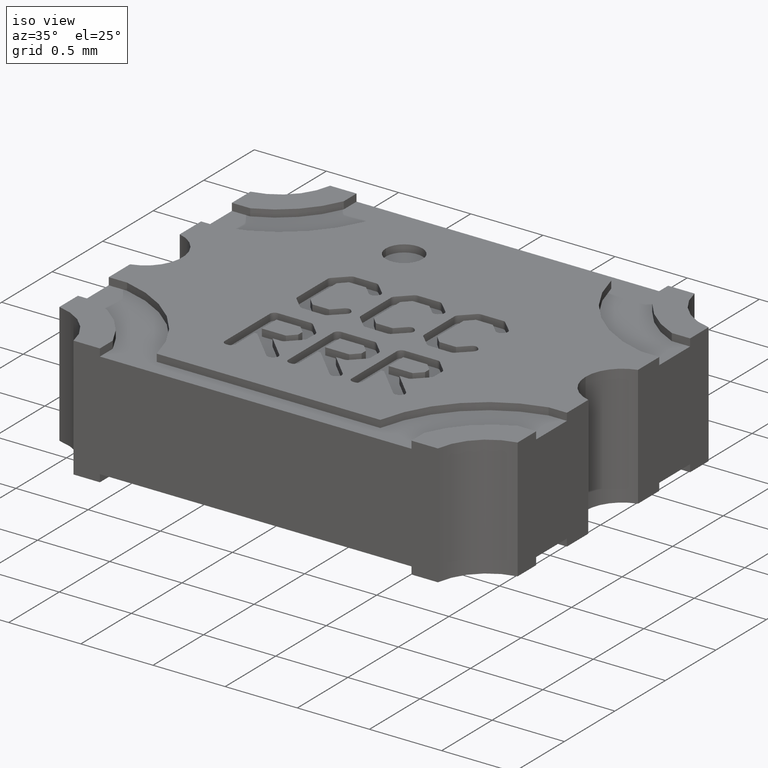
[diagram: clean part render]
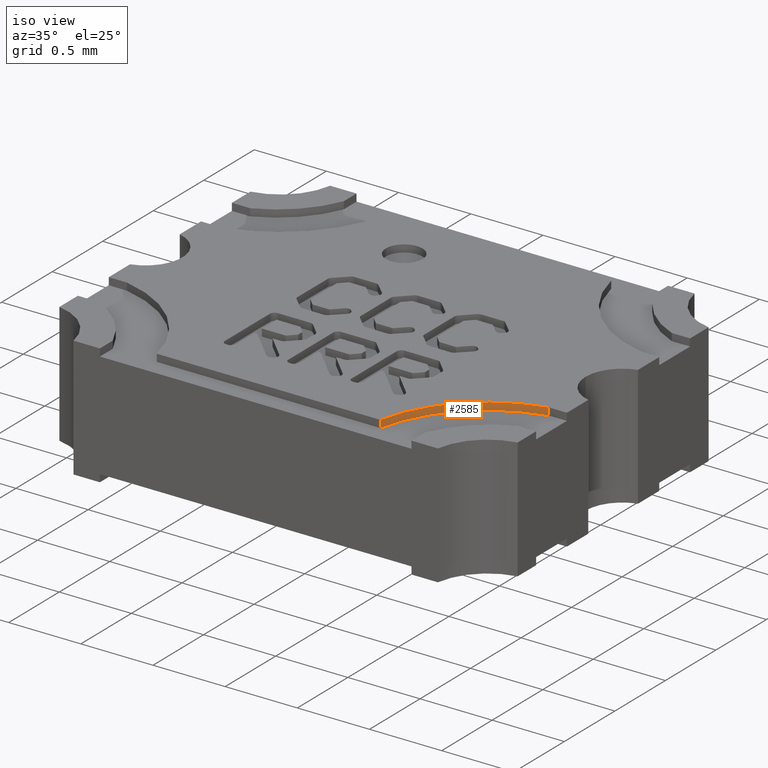
[diagram: same view with one face highlighted and labeled with its STEP entity id]
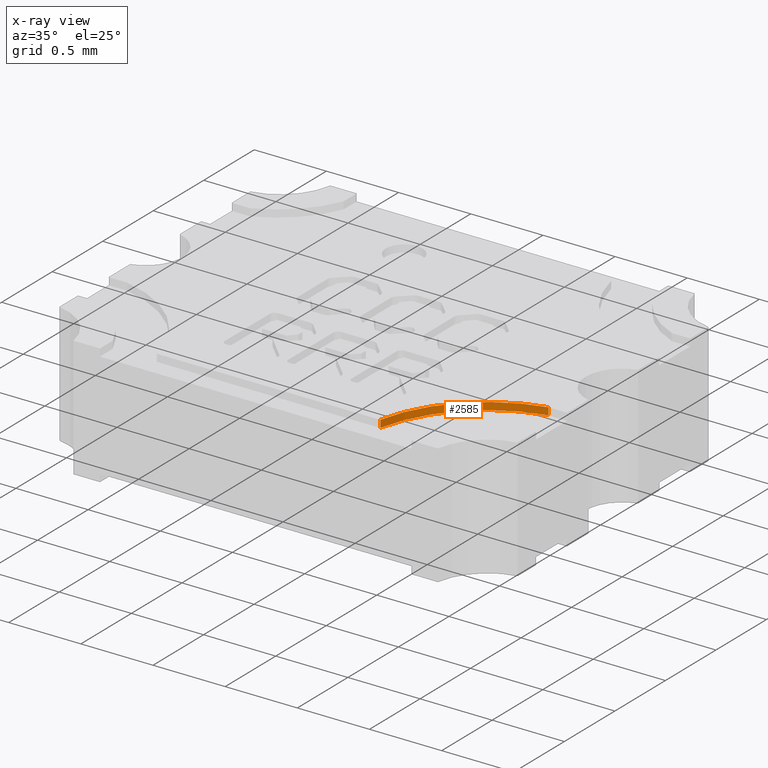
[diagram: x-ray of the same camera — body ghosted, the highlighted face saturated]
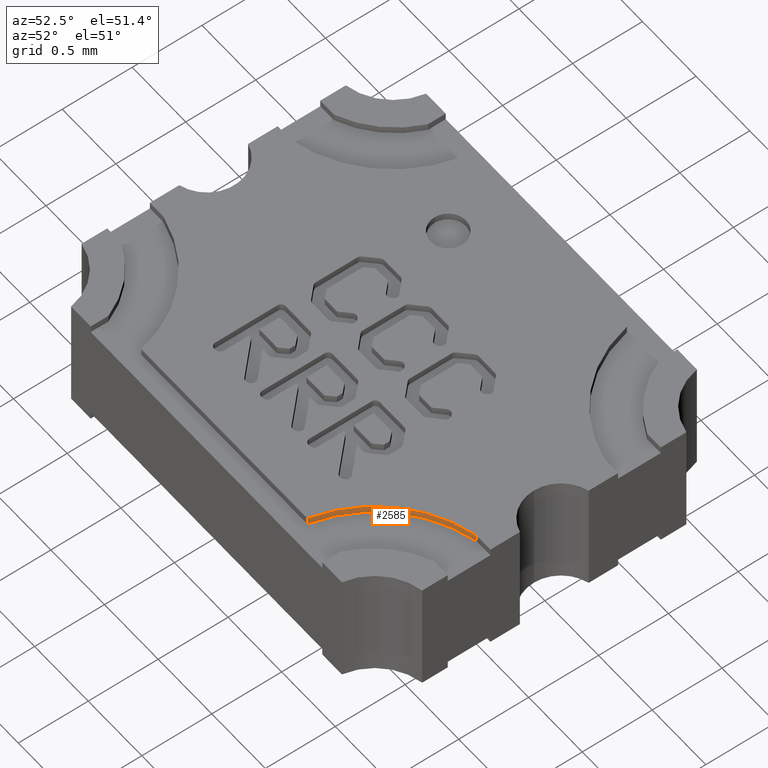
[diagram: same view with one face highlighted and labeled with its STEP entity id]
A machine part, iso view. The second image highlights one B-rep face of the part: STEP entity #2585.
The next image is the same camera in x-ray: the body ghosted, the highlighted face saturated — about 0% of this face is hidden behind the body in this view.
A second angle (auxiliary view) of the same face is appended — the face is thin or edge-on in the first view.
In plain terms, the highlighted cylindrical surface (partial cylindrical patch) has radius 0.8903 mm, axis along (-0, -0, 1).
Its self-contained STEP definition (entity closure, byte-faithful):
#1014 = CIRCLE ( 'NONE', #2217, 0.03504927346586871051 ) ;
#1221 = CARTESIAN_POINT ( 'NONE',  ( 0.06478448744574369367, -0.05227605478253748855, 0.03300000000000000155 ) ) ;
#1361 = DIRECTION ( 'NONE',  ( 1.000000000000000000, 0.000000000000000000, 0.000000000000000000 ) ) ;
#1708 = FACE_OUTER_BOUND ( 'NONE', #2147, .T. ) ;
#2015 = VERTEX_POINT ( 'NONE', #5715 ) ;
#2107 = EDGE_CURVE ( 'NONE', #2015, #4805, #1014, .T. ) ;
#2147 = EDGE_LOOP ( 'NONE', ( #7771, #9205, #4107, #5205 ) ) ;
#2217 = AXIS2_PLACEMENT_3D ( 'NONE', #2812, #8508, #5013 ) ;
#2249 = AXIS2_PLACEMENT_3D ( 'NONE', #1221, #8371, #1361 ) ;
#2585 = ADVANCED_FACE ( 'NONE', ( #1708 ), #7190, .F. ) ;
#2601 = VERTEX_POINT ( 'NONE', #4422 ) ;
#2812 = CARTESIAN_POINT ( 'NONE',  ( 0.06478448744574369367, -0.05227605478253748855, 0.03100000000000000325 ) ) ;
#3119 = DIRECTION ( 'NONE',  ( 1.000000000000000000, 0.000000000000000000, 0.000000000000000000 ) ) ;
#4005 = CARTESIAN_POINT ( 'NONE',  ( 0.03050000000132902997, -0.04499419436372816689, 0.03100000000000000325 ) ) ;
#4107 = ORIENTED_EDGE ( 'NONE', *, *, #2107, .F. ) ;
#4422 = CARTESIAN_POINT ( 'NONE',  ( 0.03050000000132902997, -0.04499419436372816689, 0.03300000000000000155 ) ) ;
#4805 = VERTEX_POINT ( 'NONE', #9142 ) ;
#4991 = VECTOR ( 'NONE', #9007, 39.37007874015748143 ) ;
#5013 = DIRECTION ( 'NONE',  ( 1.000000000000000000, 0.000000000000000000, 0.000000000000000000 ) ) ;
#5115 = CARTESIAN_POINT ( 'NONE',  ( 0.05750135668381906734, -0.01799183717749427286, 0.03300000000000000155 ) ) ;
#5205 = ORIENTED_EDGE ( 'NONE', *, *, #7857, .T. ) ;
#5424 = CARTESIAN_POINT ( 'NONE',  ( 0.05750135668381906734, -0.01799183717749427286, 0.03100000000000000325 ) ) ;
#5715 = CARTESIAN_POINT ( 'NONE',  ( 0.05750135668381906734, -0.01799183717749427286, 0.03100000000000000325 ) ) ;
#5740 = VECTOR ( 'NONE', #8316, 39.37007874015748143 ) ;
#6516 = EDGE_CURVE ( 'NONE', #8499, #2601, #7030, .T. ) ;
#6823 = LINE ( 'NONE', #5424, #5740 ) ;
#7030 = CIRCLE ( 'NONE', #2249, 0.03504927346586871051 ) ;
#7087 = AXIS2_PLACEMENT_3D ( 'NONE', #8064, #7317, #3119 ) ;
#7190 = CYLINDRICAL_SURFACE ( 'NONE', #7087, 0.03504927346586871051 ) ;
#7317 = DIRECTION ( 'NONE',  ( -0.000000000000000000, -0.000000000000000000, 1.000000000000000000 ) ) ;
#7596 = LINE ( 'NONE', #4005, #4991 ) ;
#7771 = ORIENTED_EDGE ( 'NONE', *, *, #6516, .T. ) ;
#7857 = EDGE_CURVE ( 'NONE', #2015, #8499, #6823, .T. ) ;
#8064 = CARTESIAN_POINT ( 'NONE',  ( 0.06478448744574369367, -0.05227605478253748855, 0.03100000000000000325 ) ) ;
#8200 = EDGE_CURVE ( 'NONE', #4805, #2601, #7596, .T. ) ;
#8316 = DIRECTION ( 'NONE',  ( -0.000000000000000000, -0.000000000000000000, 1.000000000000000000 ) ) ;
#8371 = DIRECTION ( 'NONE',  ( 0.000000000000000000, 0.000000000000000000, 1.000000000000000000 ) ) ;
#8499 = VERTEX_POINT ( 'NONE', #5115 ) ;
#8508 = DIRECTION ( 'NONE',  ( 0.000000000000000000, 0.000000000000000000, 1.000000000000000000 ) ) ;
#9007 = DIRECTION ( 'NONE',  ( -0.000000000000000000, -0.000000000000000000, 1.000000000000000000 ) ) ;
#9142 = CARTESIAN_POINT ( 'NONE',  ( 0.03050000000132902997, -0.04499419436372816689, 0.03100000000000000325 ) ) ;
#9205 = ORIENTED_EDGE ( 'NONE', *, *, #8200, .F. ) ;